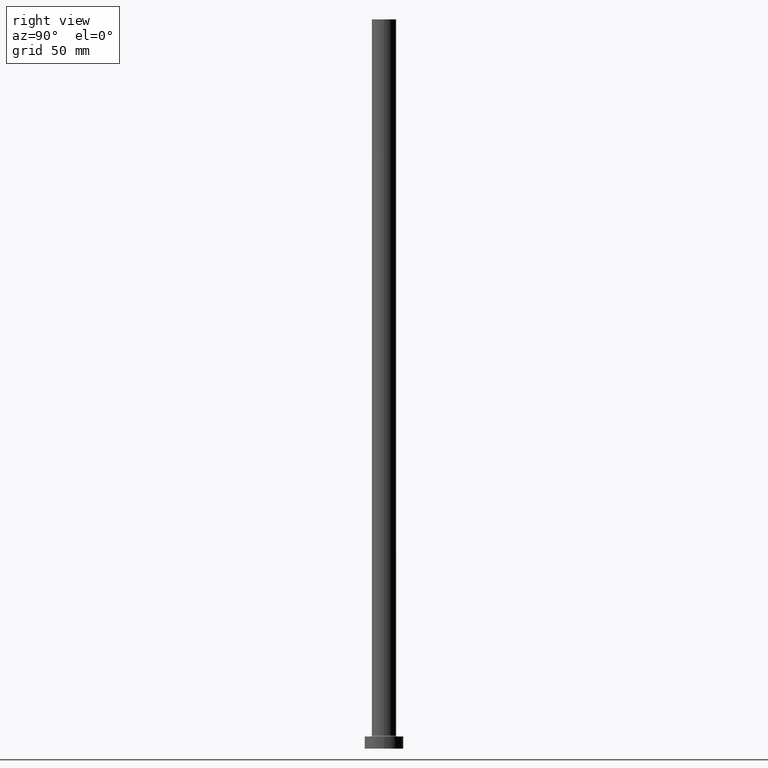
[diagram: clean part render]
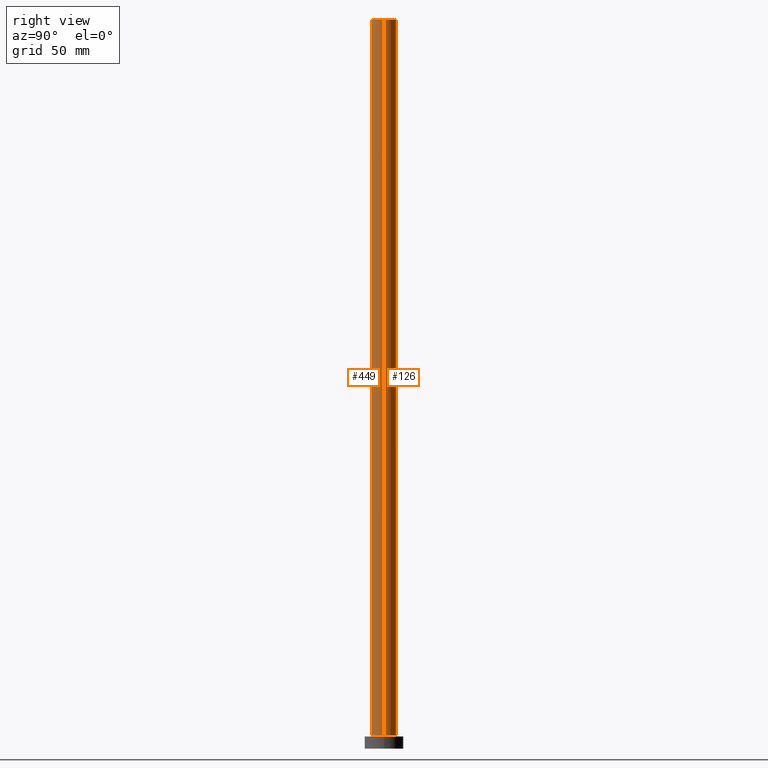
[diagram: same view with one multi-face feature highlighted, each face labeled with its STEP entity id]
A machine part, right view. The highlighted faces form ONE feature: a constant-radius fillet chain: 2 tangent blend faces with common blend radius 5 mm. The faces share edges in the B-rep.
Their STEP definitions:
[1] entity #449 (Cylinder):
#11 = DIRECTION ( 'NONE',  ( -0.000000000000000000, -0.000000000000000000, -1.000000000000000000 ) ) ;
#21 = CARTESIAN_POINT ( 'NONE',  ( -5.000000000000000000, 0.000000000000000000, 300.0000000000000000 ) ) ;
#26 = LINE ( 'NONE', #365, #138 ) ;
#48 = CARTESIAN_POINT ( 'NONE',  ( 5.000000000000000000, 6.123233995736766282E-16, 300.0000000000000000 ) ) ;
#50 = EDGE_CURVE ( 'NONE', #439, #386, #26, .T. ) ;
#61 = FACE_OUTER_BOUND ( 'NONE', #333, .T. ) ;
#63 = CARTESIAN_POINT ( 'NONE',  ( 0.000000000000000000, 0.000000000000000000, 300.0000000000000000 ) ) ;
#67 = DIRECTION ( 'NONE',  ( -1.000000000000000000, 0.000000000000000000, 0.000000000000000000 ) ) ;
#72 = CARTESIAN_POINT ( 'NONE',  ( 5.000000000000000000, 6.123233995736766282E-16, 300.0000000000000000 ) ) ;
#99 = DIRECTION ( 'NONE',  ( 1.000000000000000000, 0.000000000000000000, 0.000000000000000000 ) ) ;
#130 = DIRECTION ( 'NONE',  ( 1.000000000000000000, 0.000000000000000000, 0.000000000000000000 ) ) ;
#132 = DIRECTION ( 'NONE',  ( -0.000000000000000000, -0.000000000000000000, -1.000000000000000000 ) ) ;
#133 = CYLINDRICAL_SURFACE ( 'NONE', #246, 5.000000000000000000 ) ;
#138 = VECTOR ( 'NONE', #132, 1000.000000000000000 ) ;
#149 = AXIS2_PLACEMENT_3D ( 'NONE', #167, #421, #99 ) ;
#167 = CARTESIAN_POINT ( 'NONE',  ( 0.000000000000000000, 0.000000000000000000, 300.0000000000000000 ) ) ;
#170 = CARTESIAN_POINT ( 'NONE',  ( 0.000000000000000000, 0.000000000000000000, 5.500000000000005329 ) ) ;
#180 = CIRCLE ( 'NONE', #149, 5.000000000000000000 ) ;
#202 = VERTEX_POINT ( 'NONE', #72 ) ;
#228 = VECTOR ( 'NONE', #11, 1000.000000000000000 ) ;
#240 = ORIENTED_EDGE ( 'NONE', *, *, #50, .T. ) ;
#246 = AXIS2_PLACEMENT_3D ( 'NONE', #63, #358, #67 ) ;
#273 = AXIS2_PLACEMENT_3D ( 'NONE', #170, #387, #130 ) ;
#274 = CARTESIAN_POINT ( 'NONE',  ( -5.000000000000000000, 0.000000000000000000, 5.500000000000005329 ) ) ;
#286 = EDGE_CURVE ( 'NONE', #202, #314, #301, .T. ) ;
#301 = LINE ( 'NONE', #48, #228 ) ;
#302 = CARTESIAN_POINT ( 'NONE',  ( 5.000000000000000000, 6.123233995736766282E-16, 5.500000000000005329 ) ) ;
#314 = VERTEX_POINT ( 'NONE', #302 ) ;
#329 = ORIENTED_EDGE ( 'NONE', *, *, #456, .F. ) ;
#333 = EDGE_LOOP ( 'NONE', ( #406, #329, #240, #340 ) ) ;
#340 = ORIENTED_EDGE ( 'NONE', *, *, #409, .T. ) ;
#358 = DIRECTION ( 'NONE',  ( -0.000000000000000000, -0.000000000000000000, -1.000000000000000000 ) ) ;
#365 = CARTESIAN_POINT ( 'NONE',  ( -5.000000000000000000, 0.000000000000000000, 300.0000000000000000 ) ) ;
#386 = VERTEX_POINT ( 'NONE', #274 ) ;
#387 = DIRECTION ( 'NONE',  ( 0.000000000000000000, 0.000000000000000000, 1.000000000000000000 ) ) ;
#395 = CIRCLE ( 'NONE', #273, 5.000000000000000000 ) ;
#406 = ORIENTED_EDGE ( 'NONE', *, *, #286, .F. ) ;
#409 = EDGE_CURVE ( 'NONE', #386, #314, #395, .T. ) ;
#421 = DIRECTION ( 'NONE',  ( 0.000000000000000000, 0.000000000000000000, 1.000000000000000000 ) ) ;
#439 = VERTEX_POINT ( 'NONE', #21 ) ;
#449 = ADVANCED_FACE ( 'NONE', ( #61 ), #133, .T. ) ;
#456 = EDGE_CURVE ( 'NONE', #439, #202, #180, .T. ) ;
[2] entity #126 (Cylinder):
#11 = DIRECTION ( 'NONE',  ( -0.000000000000000000, -0.000000000000000000, -1.000000000000000000 ) ) ;
#14 = EDGE_LOOP ( 'NONE', ( #82, #411, #16, #161 ) ) ;
#16 = ORIENTED_EDGE ( 'NONE', *, *, #205, .T. ) ;
#21 = CARTESIAN_POINT ( 'NONE',  ( -5.000000000000000000, 0.000000000000000000, 300.0000000000000000 ) ) ;
#26 = LINE ( 'NONE', #365, #138 ) ;
#45 = DIRECTION ( 'NONE',  ( 1.000000000000000000, 0.000000000000000000, 0.000000000000000000 ) ) ;
#48 = CARTESIAN_POINT ( 'NONE',  ( 5.000000000000000000, 6.123233995736766282E-16, 300.0000000000000000 ) ) ;
#50 = EDGE_CURVE ( 'NONE', #439, #386, #26, .T. ) ;
#59 = DIRECTION ( 'NONE',  ( -0.000000000000000000, -0.000000000000000000, -1.000000000000000000 ) ) ;
#68 = CIRCLE ( 'NONE', #381, 5.000000000000000000 ) ;
#72 = CARTESIAN_POINT ( 'NONE',  ( 5.000000000000000000, 6.123233995736766282E-16, 300.0000000000000000 ) ) ;
#82 = ORIENTED_EDGE ( 'NONE', *, *, #398, .F. ) ;
#102 = FACE_OUTER_BOUND ( 'NONE', #14, .T. ) ;
#126 = ADVANCED_FACE ( 'NONE', ( #102 ), #356, .T. ) ;
#129 = AXIS2_PLACEMENT_3D ( 'NONE', #254, #59, #451 ) ;
#132 = DIRECTION ( 'NONE',  ( -0.000000000000000000, -0.000000000000000000, -1.000000000000000000 ) ) ;
#138 = VECTOR ( 'NONE', #132, 1000.000000000000000 ) ;
#146 = DIRECTION ( 'NONE',  ( 0.000000000000000000, 0.000000000000000000, 1.000000000000000000 ) ) ;
#147 = CIRCLE ( 'NONE', #330, 5.000000000000000000 ) ;
#161 = ORIENTED_EDGE ( 'NONE', *, *, #50, .F. ) ;
#177 = CARTESIAN_POINT ( 'NONE',  ( 0.000000000000000000, 0.000000000000000000, 300.0000000000000000 ) ) ;
#202 = VERTEX_POINT ( 'NONE', #72 ) ;
#205 = EDGE_CURVE ( 'NONE', #314, #386, #68, .T. ) ;
#206 = DIRECTION ( 'NONE',  ( 0.000000000000000000, 0.000000000000000000, 1.000000000000000000 ) ) ;
#218 = CARTESIAN_POINT ( 'NONE',  ( 0.000000000000000000, 0.000000000000000000, 5.500000000000005329 ) ) ;
#228 = VECTOR ( 'NONE', #11, 1000.000000000000000 ) ;
#254 = CARTESIAN_POINT ( 'NONE',  ( 0.000000000000000000, 0.000000000000000000, 300.0000000000000000 ) ) ;
#274 = CARTESIAN_POINT ( 'NONE',  ( -5.000000000000000000, 0.000000000000000000, 5.500000000000005329 ) ) ;
#286 = EDGE_CURVE ( 'NONE', #202, #314, #301, .T. ) ;
#301 = LINE ( 'NONE', #48, #228 ) ;
#302 = CARTESIAN_POINT ( 'NONE',  ( 5.000000000000000000, 6.123233995736766282E-16, 5.500000000000005329 ) ) ;
#314 = VERTEX_POINT ( 'NONE', #302 ) ;
#317 = DIRECTION ( 'NONE',  ( 1.000000000000000000, 0.000000000000000000, 0.000000000000000000 ) ) ;
#330 = AXIS2_PLACEMENT_3D ( 'NONE', #177, #206, #317 ) ;
#356 = CYLINDRICAL_SURFACE ( 'NONE', #129, 5.000000000000000000 ) ;
#365 = CARTESIAN_POINT ( 'NONE',  ( -5.000000000000000000, 0.000000000000000000, 300.0000000000000000 ) ) ;
#381 = AXIS2_PLACEMENT_3D ( 'NONE', #218, #146, #45 ) ;
#386 = VERTEX_POINT ( 'NONE', #274 ) ;
#398 = EDGE_CURVE ( 'NONE', #202, #439, #147, .T. ) ;
#411 = ORIENTED_EDGE ( 'NONE', *, *, #286, .T. ) ;
#439 = VERTEX_POINT ( 'NONE', #21 ) ;
#451 = DIRECTION ( 'NONE',  ( -1.000000000000000000, 0.000000000000000000, 0.000000000000000000 ) ) ;